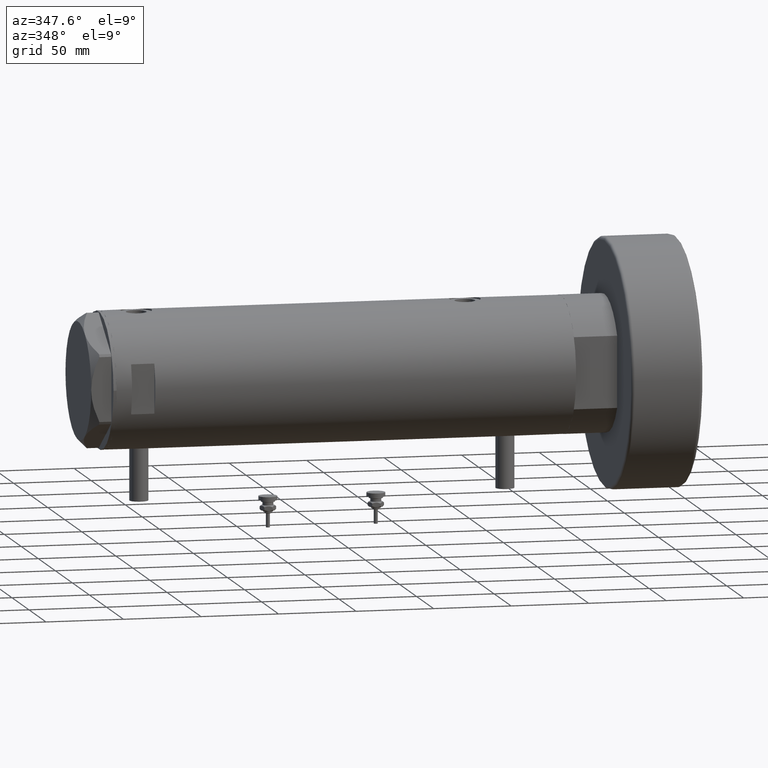
[diagram: clean part render]
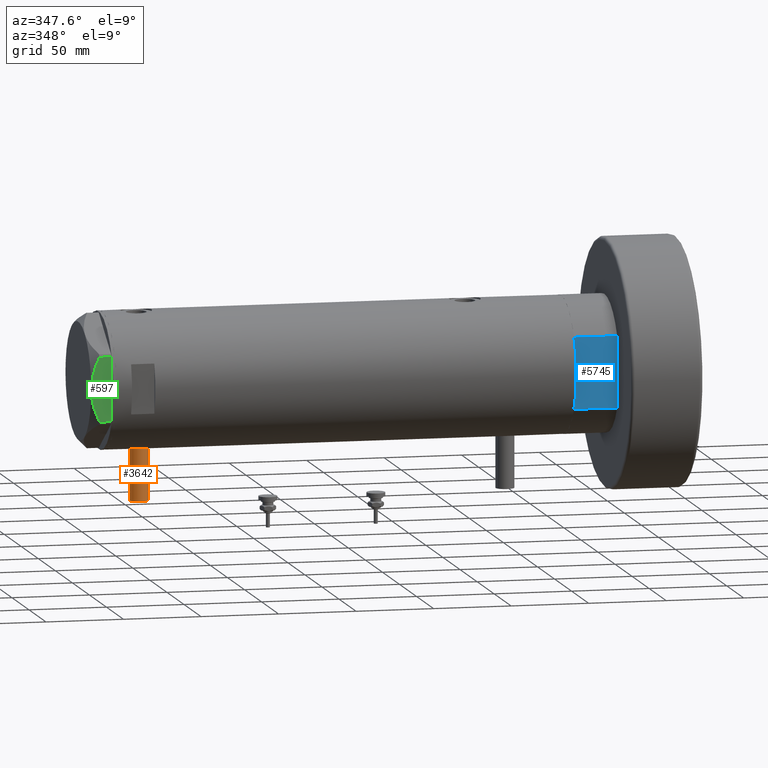
[diagram: same view with three faces highlighted in distinct colors, each labeled with its STEP entity id]
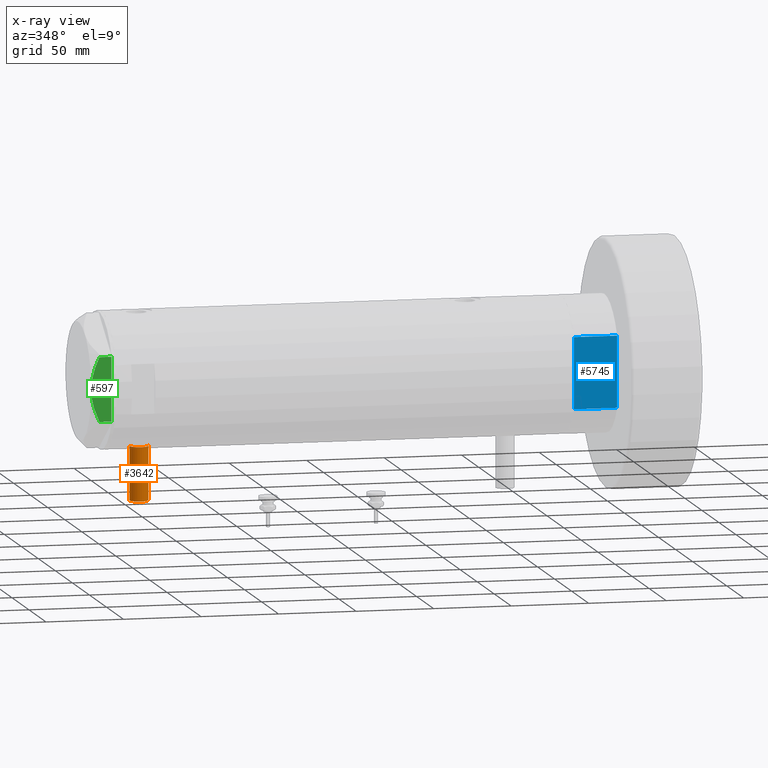
[diagram: x-ray of the same camera — body ghosted, the three highlighted faces saturated]
A machine part, auxiliary view with three faces highlighted in distinct colors.
The next image is the same camera in x-ray (body ghosted, the three faces saturated) — at least one of them is partly hidden behind the body in this view.
Their STEP definitions:

[orange] entity #3642 — the highlighted cylindrical surface (edge-blend (fillet) strip) has radius 6 mm, axis along (0, 0, 1).
#284 = EDGE_CURVE ( 'NONE', #2921, #3335, #2393, .T. ) ;
#935 = DIRECTION ( 'NONE',  ( 0.000000000000000000, 0.000000000000000000, 1.000000000000000000 ) ) ;
#989 = EDGE_CURVE ( 'NONE', #3263, #3335, #4365, .T. ) ;
#1134 = DIRECTION ( 'NONE',  ( 1.000000000000000000, -0.000000000000000000, -0.000000000000000000 ) ) ;
#1143 = ORIENTED_EDGE ( 'NONE', *, *, #4835, .F. ) ;
#1490 = ORIENTED_EDGE ( 'NONE', *, *, #284, .F. ) ;
#1574 = VECTOR ( 'NONE', #6313, 1000.000000000000000 ) ;
#1612 = LINE ( 'NONE', #2941, #4523 ) ;
#1901 = CARTESIAN_POINT ( 'NONE',  ( -77.50000000000000000, 0.000000000000000000, 124.2000000000000028 ) ) ;
#2103 = CARTESIAN_POINT ( 'NONE',  ( -42.79999999999999716, 0.000000000000000000, 124.2000000000000028 ) ) ;
#2237 = CARTESIAN_POINT ( 'NONE',  ( -77.50000000000000000, 0.000000000000000000, 118.1999999999999886 ) ) ;
#2393 = LINE ( 'NONE', #4302, #1574 ) ;
#2613 = DIRECTION ( 'NONE',  ( 0.000000000000000000, 0.000000000000000000, 1.000000000000000000 ) ) ;
#2760 = CARTESIAN_POINT ( 'NONE',  ( -42.79999999999999716, 0.000000000000000000, 118.1999999999999886 ) ) ;
#2842 = ORIENTED_EDGE ( 'NONE', *, *, #989, .T. ) ;
#2921 = VERTEX_POINT ( 'NONE', #4799 ) ;
#2941 = CARTESIAN_POINT ( 'NONE',  ( -77.50000000000000000, 0.000000000000000000, 118.1999999999999886 ) ) ;
#3263 = VERTEX_POINT ( 'NONE', #2760 ) ;
#3335 = VERTEX_POINT ( 'NONE', #5214 ) ;
#3355 = VERTEX_POINT ( 'NONE', #2237 ) ;
#3441 = CARTESIAN_POINT ( 'NONE',  ( -77.50000000000000000, 0.000000000000000000, 124.2000000000000028 ) ) ;
#3630 = AXIS2_PLACEMENT_3D ( 'NONE', #2103, #4623, #2613 ) ;
#3642 = ADVANCED_FACE ( 'NONE', ( #4520 ), #4552, .T. ) ;
#4211 = AXIS2_PLACEMENT_3D ( 'NONE', #1901, #5912, #935 ) ;
#4274 = AXIS2_PLACEMENT_3D ( 'NONE', #3441, #1134, #4589 ) ;
#4302 = CARTESIAN_POINT ( 'NONE',  ( -77.50000000000000000, 7.347880794884138472E-16, 130.2000000000000171 ) ) ;
#4365 = CIRCLE ( 'NONE', #3630, 6.000000000000005329 ) ;
#4452 = DIRECTION ( 'NONE',  ( 1.000000000000000000, -0.000000000000000000, -0.000000000000000000 ) ) ;
#4520 = FACE_OUTER_BOUND ( 'NONE', #4806, .T. ) ;
#4523 = VECTOR ( 'NONE', #4452, 1000.000000000000000 ) ;
#4552 = CYLINDRICAL_SURFACE ( 'NONE', #4274, 6.000000000000019540 ) ;
#4589 = DIRECTION ( 'NONE',  ( 0.000000000000000000, 0.000000000000000000, -1.000000000000000000 ) ) ;
#4623 = DIRECTION ( 'NONE',  ( -1.000000000000000000, 0.000000000000000000, 0.000000000000000000 ) ) ;
#4799 = CARTESIAN_POINT ( 'NONE',  ( -77.50000000000000000, 7.347880794884152277E-16, 130.2000000000000171 ) ) ;
#4806 = EDGE_LOOP ( 'NONE', ( #1490, #1143, #5862, #2842 ) ) ;
#4835 = EDGE_CURVE ( 'NONE', #3355, #2921, #5049, .T. ) ;
#4918 = EDGE_CURVE ( 'NONE', #3355, #3263, #1612, .T. ) ;
#5049 = CIRCLE ( 'NONE', #4211, 6.000000000000005329 ) ;
#5214 = CARTESIAN_POINT ( 'NONE',  ( -42.79999999999999716, 7.347880794884152277E-16, 130.2000000000000171 ) ) ;
#5862 = ORIENTED_EDGE ( 'NONE', *, *, #4918, .T. ) ;
#5912 = DIRECTION ( 'NONE',  ( -1.000000000000000000, 0.000000000000000000, 0.000000000000000000 ) ) ;
#6313 = DIRECTION ( 'NONE',  ( 1.000000000000000000, -0.000000000000000000, -0.000000000000000000 ) ) ;

[blue] entity #5745 — the highlighted planar face has unit normal (-0, 1, 0).
#155 = ORIENTED_EDGE ( 'NONE', *, *, #974, .T. ) ;
#196 = LINE ( 'NONE', #1305, #5933 ) ;
#365 = EDGE_CURVE ( 'NONE', #4582, #5457, #4526, .T. ) ;
#709 = LINE ( 'NONE', #4129, #6136 ) ;
#733 = VERTEX_POINT ( 'NONE', #797 ) ;
#795 = PLANE ( 'NONE',  #4535 ) ;
#797 = CARTESIAN_POINT ( 'NONE',  ( -23.01629857296780557, -37.50000000000000000, 0.000000000000000000 ) ) ;
#843 = ORIENTED_EDGE ( 'NONE', *, *, #1886, .F. ) ;
#875 = EDGE_CURVE ( 'NONE', #3748, #5080, #709, .T. ) ;
#918 = DIRECTION ( 'NONE',  ( -1.000000000000000000, -0.000000000000000000, -0.000000000000000000 ) ) ;
#974 = EDGE_CURVE ( 'NONE', #5080, #4582, #3645, .T. ) ;
#1131 = VERTEX_POINT ( 'NONE', #4320 ) ;
#1305 = CARTESIAN_POINT ( 'NONE',  ( -23.01629857296780557, -37.50000000000000000, 0.000000000000000000 ) ) ;
#1525 = DIRECTION ( 'NONE',  ( -1.000000000000000000, -0.000000000000000000, -0.000000000000000000 ) ) ;
#1834 = DIRECTION ( 'NONE',  ( -0.000000000000000000, -0.000000000000000000, 1.000000000000000000 ) ) ;
#1847 = CARTESIAN_POINT ( 'NONE',  ( 13.91941090707505957, -37.50000000000000000, 0.000000000000000000 ) ) ;
#1886 = EDGE_CURVE ( 'NONE', #733, #5457, #4291, .T. ) ;
#1979 = CARTESIAN_POINT ( 'NONE',  ( -23.01629857296780557, -37.50000000000000000, 0.000000000000000000 ) ) ;
#1998 = CARTESIAN_POINT ( 'NONE',  ( 23.01629857296780557, -37.50000000000000000, 27.89999999999999858 ) ) ;
#2447 = ORIENTED_EDGE ( 'NONE', *, *, #3278, .F. ) ;
#2578 = DIRECTION ( 'NONE',  ( -1.000000000000000000, -0.000000000000000000, -0.000000000000000000 ) ) ;
#2745 = DIRECTION ( 'NONE',  ( 0.000000000000000000, -0.000000000000000000, 1.000000000000000000 ) ) ;
#2803 = VECTOR ( 'NONE', #918, 1000.000000000000000 ) ;
#2956 = EDGE_CURVE ( 'NONE', #3748, #3002, #4924, .T. ) ;
#2992 = EDGE_CURVE ( 'NONE', #1131, #733, #3384, .T. ) ;
#3002 = VERTEX_POINT ( 'NONE', #1847 ) ;
#3216 = VECTOR ( 'NONE', #2578, 1000.000000000000000 ) ;
#3278 = EDGE_CURVE ( 'NONE', #3002, #1131, #196, .T. ) ;
#3384 = LINE ( 'NONE', #1979, #4993 ) ;
#3449 = CARTESIAN_POINT ( 'NONE',  ( -23.01629857296780557, -37.50000000000000000, 0.000000000000000000 ) ) ;
#3645 = LINE ( 'NONE', #4126, #3216 ) ;
#3705 = DIRECTION ( 'NONE',  ( -1.000000000000000000, -0.000000000000000000, -0.000000000000000000 ) ) ;
#3748 = VERTEX_POINT ( 'NONE', #6081 ) ;
#3878 = DIRECTION ( 'NONE',  ( -0.000000000000000000, 1.000000000000000000, 0.000000000000000000 ) ) ;
#3934 = CARTESIAN_POINT ( 'NONE',  ( -23.01629857296780557, -37.50000000000000000, 27.89999999999999858 ) ) ;
#4126 = CARTESIAN_POINT ( 'NONE',  ( -23.01629857296780557, -37.50000000000000000, 27.89999999999999858 ) ) ;
#4129 = CARTESIAN_POINT ( 'NONE',  ( 23.01629857296780557, -37.50000000000000000, 0.000000000000000000 ) ) ;
#4163 = CARTESIAN_POINT ( 'NONE',  ( -23.01629857296780557, -37.50000000000000000, 0.000000000000000000 ) ) ;
#4234 = ORIENTED_EDGE ( 'NONE', *, *, #2992, .F. ) ;
#4291 = LINE ( 'NONE', #4163, #5705 ) ;
#4320 = CARTESIAN_POINT ( 'NONE',  ( -13.91941090707505957, -37.50000000000000000, 0.000000000000000000 ) ) ;
#4526 = LINE ( 'NONE', #3934, #4672 ) ;
#4535 = AXIS2_PLACEMENT_3D ( 'NONE', #6227, #3878, #2745 ) ;
#4582 = VERTEX_POINT ( 'NONE', #5556 ) ;
#4672 = VECTOR ( 'NONE', #1525, 1000.000000000000000 ) ;
#4922 = ORIENTED_EDGE ( 'NONE', *, *, #875, .T. ) ;
#4924 = LINE ( 'NONE', #3449, #2803 ) ;
#4993 = VECTOR ( 'NONE', #5894, 1000.000000000000000 ) ;
#5080 = VERTEX_POINT ( 'NONE', #1998 ) ;
#5293 = EDGE_LOOP ( 'NONE', ( #155, #5574, #843, #4234, #2447, #5697, #4922 ) ) ;
#5457 = VERTEX_POINT ( 'NONE', #5509 ) ;
#5509 = CARTESIAN_POINT ( 'NONE',  ( -23.01629857296780557, -37.50000000000000000, 27.89999999999999858 ) ) ;
#5556 = CARTESIAN_POINT ( 'NONE',  ( 0.000000000000000000, -37.50000000000000000, 27.89999999999999858 ) ) ;
#5574 = ORIENTED_EDGE ( 'NONE', *, *, #365, .T. ) ;
#5697 = ORIENTED_EDGE ( 'NONE', *, *, #2956, .F. ) ;
#5705 = VECTOR ( 'NONE', #1834, 1000.000000000000000 ) ;
#5745 = ADVANCED_FACE ( 'NONE', ( #5838 ), #795, .F. ) ;
#5838 = FACE_OUTER_BOUND ( 'NONE', #5293, .T. ) ;
#5894 = DIRECTION ( 'NONE',  ( -1.000000000000000000, -0.000000000000000000, -0.000000000000000000 ) ) ;
#5933 = VECTOR ( 'NONE', #3705, 1000.000000000000000 ) ;
#6081 = CARTESIAN_POINT ( 'NONE',  ( 23.01629857296780557, -37.50000000000000000, 0.000000000000000000 ) ) ;
#6124 = DIRECTION ( 'NONE',  ( -0.000000000000000000, -0.000000000000000000, 1.000000000000000000 ) ) ;
#6136 = VECTOR ( 'NONE', #6124, 1000.000000000000000 ) ;
#6227 = CARTESIAN_POINT ( 'NONE',  ( -23.01629857296780557, -37.50000000000000000, 0.000000000000000000 ) ) ;

[green] entity #597 — the highlighted planar face has unit normal (-0, 1, 0).
#33 = DIRECTION ( 'NONE',  ( 3.183713056926429451E-16, -1.000000000000000000, 0.000000000000000000 ) ) ;
#53 = VECTOR ( 'NONE', #395, 1000.000000000000000 ) ;
#261 = DIRECTION ( 'NONE',  ( 1.000000000000000000, 3.183713056926429451E-16, -0.000000000000000000 ) ) ;
#273 = CARTESIAN_POINT ( 'NONE',  ( -37.75000000000000711, 3.615248338761639868, 13.00000000000000355 ) ) ;
#395 = DIRECTION ( 'NONE',  ( 0.000000000000000000, 0.000000000000000000, 1.000000000000000000 ) ) ;
#398 = VERTEX_POINT ( 'NONE', #5374 ) ;
#410 = CARTESIAN_POINT ( 'NONE',  ( -37.74999999999999289, 12.33018559404073855, 11.04557586999680474 ) ) ;
#597 = ADVANCED_FACE ( 'NONE', ( #879 ), #841, .F. ) ;
#609 = CARTESIAN_POINT ( 'NONE',  ( -37.75000000000000711, 20.67497266190837024, 13.00000000000000000 ) ) ;
#673 = CARTESIAN_POINT ( 'NONE',  ( -37.75000000000000000, -4.503994958793054337, 12.74237531377022670 ) ) ;
#734 = CARTESIAN_POINT ( 'NONE',  ( -37.75000000000000000, -17.40390235304479205, 9.187919079516763787 ) ) ;
#841 = PLANE ( 'NONE',  #5195 ) ;
#879 = FACE_OUTER_BOUND ( 'NONE', #4415, .T. ) ;
#929 = EDGE_CURVE ( 'NONE', #5563, #398, #1742, .T. ) ;
#1126 = VECTOR ( 'NONE', #33, 1000.000000000000000 ) ;
#1161 = CARTESIAN_POINT ( 'NONE',  ( -37.75000000000000000, -1.811728074765795338, 12.96720910498919999 ) ) ;
#1209 = EDGE_CURVE ( 'NONE', #5563, #2389, #6170, .T. ) ;
#1484 = CARTESIAN_POINT ( 'NONE',  ( -37.75000000000000711, 21.79497266190837124, 0.000000000000000000 ) ) ;
#1493 = VERTEX_POINT ( 'NONE', #4982 ) ;
#1607 = CARTESIAN_POINT ( 'NONE',  ( -37.75000000000000000, 14.89874562435961103, 10.17375260246623903 ) ) ;
#1649 = CARTESIAN_POINT ( 'NONE',  ( -37.75000000000000000, -0.9015134592203577490, 13.00000000000000178 ) ) ;
#1680 = CARTESIAN_POINT ( 'NONE',  ( -37.74999999999999289, -12.34877760086739862, 11.06613894200179260 ) ) ;
#1712 = EDGE_CURVE ( 'NONE', #2389, #1493, #5819, .T. ) ;
#1742 = LINE ( 'NONE', #609, #2796 ) ;
#2019 = CARTESIAN_POINT ( 'NONE',  ( -37.75000000000000711, 20.67497266190838090, 7.709124142616995634 ) ) ;
#2159 = CARTESIAN_POINT ( 'NONE',  ( -37.74999999999999289, -7.161343005612803125, 12.36677985830371895 ) ) ;
#2256 = CARTESIAN_POINT ( 'NONE',  ( -37.74999999999999289, -20.67497266190838090, 7.709124142616975206 ) ) ;
#2351 = CARTESIAN_POINT ( 'NONE',  ( -37.74999999999999289, 14.04433099034388199, 10.48027127384610857 ) ) ;
#2382 = CARTESIAN_POINT ( 'NONE',  ( -37.74999999999999289, 11.46926194450821690, 11.30493988086503521 ) ) ;
#2389 = VERTEX_POINT ( 'NONE', #4588 ) ;
#2564 = CARTESIAN_POINT ( 'NONE',  ( -37.74999999999999289, -20.67497266190837379, 0.000000000000000000 ) ) ;
#2796 = VECTOR ( 'NONE', #5687, 1000.000000000000000 ) ;
#2859 = ORIENTED_EDGE ( 'NONE', *, *, #4156, .T. ) ;
#2973 = CARTESIAN_POINT ( 'NONE',  ( -37.74999999999999289, -16.56731140591524110, 9.531835068628826235 ) ) ;
#3036 = CARTESIAN_POINT ( 'NONE',  ( -37.75000000000001421, 19.06473524669327446, 8.482612457517163307 ) ) ;
#3112 = CARTESIAN_POINT ( 'NONE',  ( -37.74999999999998579, -3.611424898442238351, 12.83826937481876662 ) ) ;
#3127 = ORIENTED_EDGE ( 'NONE', *, *, #5037, .T. ) ;
#3142 = CARTESIAN_POINT ( 'NONE',  ( -37.75000000000000000, -19.86857906850810096, 8.096480699986589258 ) ) ;
#3201 = CARTESIAN_POINT ( 'NONE',  ( -37.75000000000000000, -1.201851678989727067E-14, 13.00000000000000000 ) ) ;
#3252 = ORIENTED_EDGE ( 'NONE', *, *, #1712, .F. ) ;
#3299 = LINE ( 'NONE', #5769, #53 ) ;
#4044 = CARTESIAN_POINT ( 'NONE',  ( -37.75000000000000000, 17.42329546264825524, 9.202188366597436442 ) ) ;
#4118 = CARTESIAN_POINT ( 'NONE',  ( -37.75000000000000000, -8.905753572404320195, 11.99914237172014886 ) ) ;
#4156 = EDGE_CURVE ( 'NONE', #5074, #1493, #3299, .T. ) ;
#4189 = CARTESIAN_POINT ( 'NONE',  ( -37.75000000000000000, -19.05362936076134517, 8.470554105526115762 ) ) ;
#4227 = DIRECTION ( 'NONE',  ( -3.183713056926429451E-16, 1.000000000000000000, 0.000000000000000000 ) ) ;
#4262 = CARTESIAN_POINT ( 'NONE',  ( -37.75000000000000711, 21.79497266190837124, 13.00000000000000000 ) ) ;
#4352 = CARTESIAN_POINT ( 'NONE',  ( -37.75000000000000000, 7.143641079404827288, 12.47474846747316946 ) ) ;
#4415 = EDGE_LOOP ( 'NONE', ( #5010, #4943, #3127, #2859, #3252 ) ) ;
#4486 = LINE ( 'NONE', #1484, #1126 ) ;
#4588 = CARTESIAN_POINT ( 'NONE',  ( -37.75000000000000000, -1.201851678989727067E-14, 13.00000000000000000 ) ) ;
#4943 = ORIENTED_EDGE ( 'NONE', *, *, #929, .T. ) ;
#4982 = CARTESIAN_POINT ( 'NONE',  ( -37.74999999999999289, -20.67497266190838090, 7.709124142616975206 ) ) ;
#5010 = ORIENTED_EDGE ( 'NONE', *, *, #1209, .F. ) ;
#5037 = EDGE_CURVE ( 'NONE', #398, #5074, #4486, .T. ) ;
#5074 = VERTEX_POINT ( 'NONE', #2564 ) ;
#5195 = AXIS2_PLACEMENT_3D ( 'NONE', #4262, #261, #4227 ) ;
#5374 = CARTESIAN_POINT ( 'NONE',  ( -37.75000000000000711, 20.67497266190837024, 0.000000000000000000 ) ) ;
#5513 = CARTESIAN_POINT ( 'NONE',  ( -37.75000000000000711, 20.67497266190838090, 7.709124142616995634 ) ) ;
#5563 = VERTEX_POINT ( 'NONE', #2019 ) ;
#5589 = CARTESIAN_POINT ( 'NONE',  ( -37.75000000000000000, -1.201851678989727067E-14, 13.00000000000000000 ) ) ;
#5619 = CARTESIAN_POINT ( 'NONE',  ( -37.74999999999999289, -14.04742653794399132, 10.50092616350622698 ) ) ;
#5687 = DIRECTION ( 'NONE',  ( 0.000000000000000000, 0.000000000000000000, -1.000000000000000000 ) ) ;
#5769 = CARTESIAN_POINT ( 'NONE',  ( -37.74999999999999289, -20.67497266190837379, 13.00000000000000000 ) ) ;
#5819 = B_SPLINE_CURVE_WITH_KNOTS ( 'NONE', 3,
 ( #5589, #1649, #1161, #3112, #673, #2159, #4118, #1680, #5619, #2973, #734, #4189, #3142, #2256 ),
 .UNSPECIFIED., .F., .F.,
 ( 4, 2, 2, 2, 2, 2, 4 ),
 ( 0.07749717587205659508, 0.08017617902235898986, 0.08285518217266138463, 0.08821318847326617418, 0.09357119477387096373, 0.09625019792417334463, 0.09892920107447573941 ),
 .UNSPECIFIED. ) ;
#6170 = B_SPLINE_CURVE_WITH_KNOTS ( 'NONE', 3,
 ( #5513, #3036, #4044, #1607, #2351, #410, #2382, #4352, #273, #3201 ),
 .UNSPECIFIED., .F., .F.,
 ( 4, 2, 2, 2, 4 ),
 ( 0.05601050456479945983, 0.06138217239161374017, 0.06406800630502088034, 0.06675384021842802051, 0.07749717587205659508 ),
 .UNSPECIFIED. ) ;